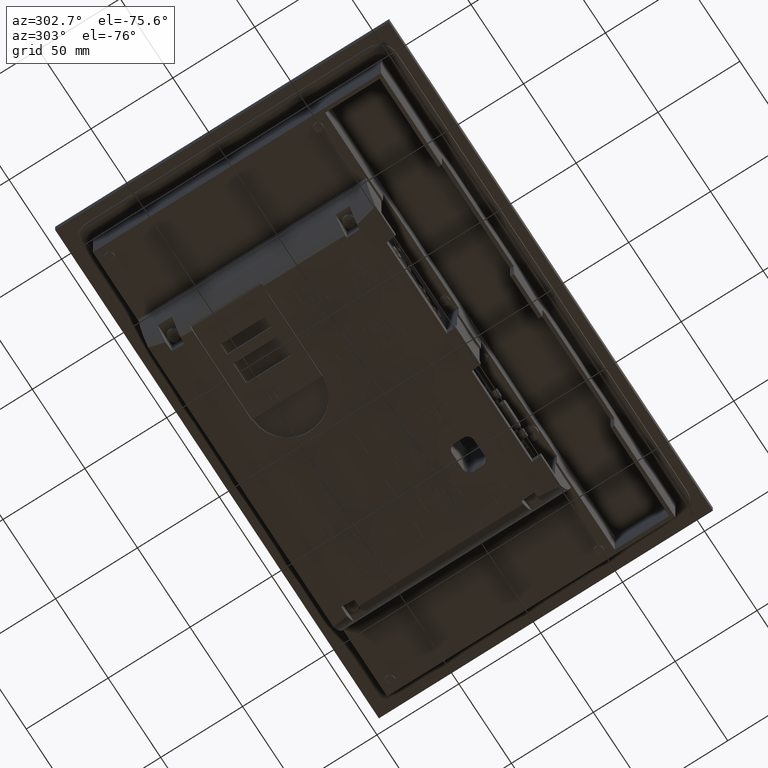
[diagram: clean part render]
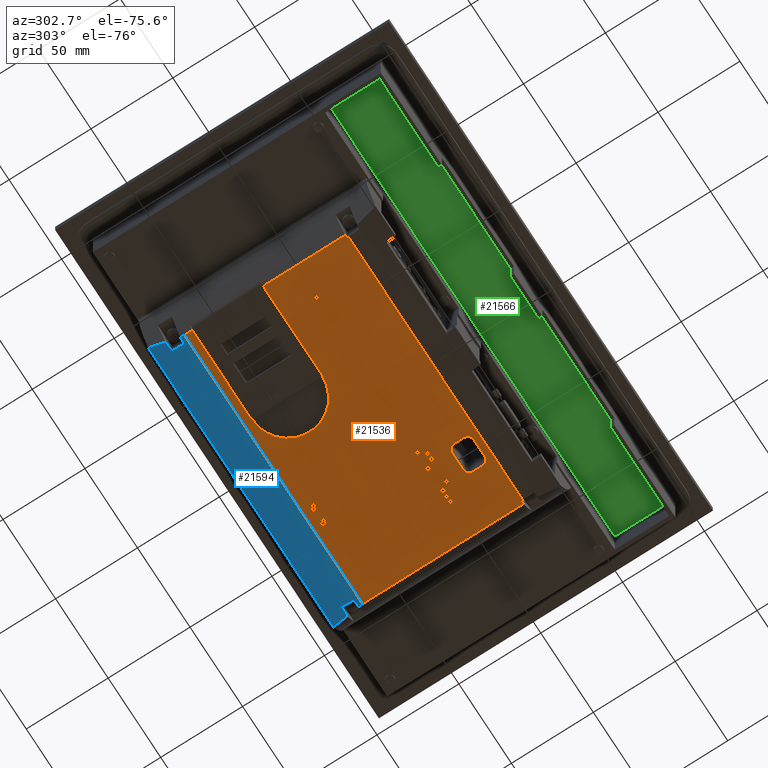
[diagram: same view with three faces highlighted in distinct colors, each labeled with its STEP entity id]
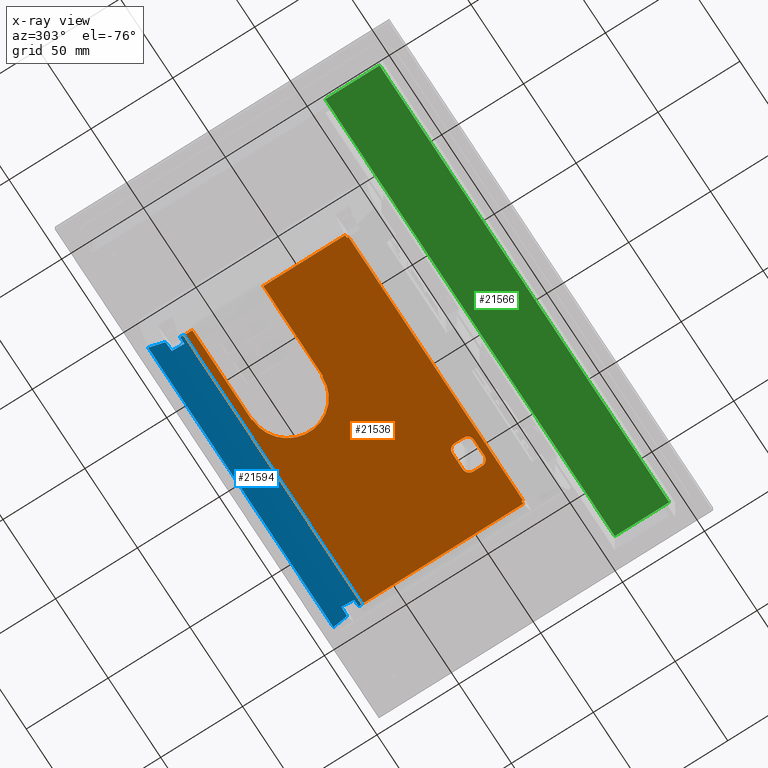
[diagram: x-ray of the same camera — body ghosted, the three highlighted faces saturated]
A machine part, auxiliary view with three faces highlighted in distinct colors.
The next image is the same camera in x-ray (body ghosted, the three faces saturated) — at least one of them is partly hidden behind the body in this view.
Their STEP definitions:

[orange] entity #21536 — the highlighted planar face has unit normal (0, 0, 1).
#4714=LINE('',#83607,#11484);
#4720=LINE('',#83619,#11490);
#4810=LINE('',#83876,#11580);
#4811=LINE('',#83880,#11581);
#4812=LINE('',#83884,#11582);
#4813=LINE('',#83888,#11583);
#4814=LINE('',#83889,#11584);
#4815=LINE('',#83892,#11585);
#4816=LINE('',#83894,#11586);
#4817=LINE('',#83896,#11587);
#4818=LINE('',#83898,#11588);
#4819=LINE('',#83900,#11589);
#4820=LINE('',#83902,#11590);
#4821=LINE('',#83904,#11591);
#4822=LINE('',#83905,#11592);
#4823=LINE('',#83909,#11593);
#4824=LINE('',#83910,#11594);
#4825=LINE('',#83912,#11595);
#4826=LINE('',#83914,#11596);
#4827=LINE('',#83916,#11597);
#4828=LINE('',#83918,#11598);
#11484=VECTOR('',#67787,1.);
#11490=VECTOR('',#67795,1.);
#11580=VECTOR('',#67973,1.);
#11581=VECTOR('',#67976,1.);
#11582=VECTOR('',#67979,1.);
#11583=VECTOR('',#67982,1.);
#11584=VECTOR('',#67983,1.);
#11585=VECTOR('',#67984,1.);
#11586=VECTOR('',#67985,1.);
#11587=VECTOR('',#67986,1.);
#11588=VECTOR('',#67987,1.);
#11589=VECTOR('',#67988,1.);
#11590=VECTOR('',#67989,1.);
#11591=VECTOR('',#67990,1.);
#11592=VECTOR('',#67991,1.);
#11593=VECTOR('',#67994,1.);
#11594=VECTOR('',#67995,1.);
#11595=VECTOR('',#67996,1.);
#11596=VECTOR('',#67997,1.);
#11597=VECTOR('',#67998,1.);
#11598=VECTOR('',#67999,1.);
#21536=ADVANCED_FACE('',(#28703,#28704),#24894,.F.);
#24894=PLANE('',#63173);
#28703=FACE_BOUND('',#29624,.T.);
#28704=FACE_BOUND('',#29625,.T.);
#29624=EDGE_LOOP('',(#34867,#34868,#34869,#34870,#34871,#34872,#34873,#34874));
#29625=EDGE_LOOP('',(#34875,#34876,#34877,#34878,#34879,#34880,#34881,#34882,
#34883,#34884,#34885,#34886,#34887,#34888,#34889,#34890,#34891,#34892));
#34867=ORIENTED_EDGE('',*,*,#55380,.F.);
#34868=ORIENTED_EDGE('',*,*,#55381,.F.);
#34869=ORIENTED_EDGE('',*,*,#55382,.F.);
#34870=ORIENTED_EDGE('',*,*,#55383,.F.);
#34871=ORIENTED_EDGE('',*,*,#55384,.F.);
#34872=ORIENTED_EDGE('',*,*,#55385,.F.);
#34873=ORIENTED_EDGE('',*,*,#55386,.F.);
#34874=ORIENTED_EDGE('',*,*,#55387,.F.);
#34875=ORIENTED_EDGE('',*,*,#55388,.F.);
#34876=ORIENTED_EDGE('',*,*,#55389,.F.);
#34877=ORIENTED_EDGE('',*,*,#55390,.T.);
#34878=ORIENTED_EDGE('',*,*,#55391,.T.);
#34879=ORIENTED_EDGE('',*,*,#55392,.T.);
#34880=ORIENTED_EDGE('',*,*,#55393,.F.);
#34881=ORIENTED_EDGE('',*,*,#55394,.F.);
#34882=ORIENTED_EDGE('',*,*,#55395,.F.);
#34883=ORIENTED_EDGE('',*,*,#55248,.F.);
#34884=ORIENTED_EDGE('',*,*,#55396,.F.);
#34885=ORIENTED_EDGE('',*,*,#55397,.F.);
#34886=ORIENTED_EDGE('',*,*,#55398,.F.);
#34887=ORIENTED_EDGE('',*,*,#55254,.T.);
#34888=ORIENTED_EDGE('',*,*,#55399,.T.);
#34889=ORIENTED_EDGE('',*,*,#55400,.T.);
#34890=ORIENTED_EDGE('',*,*,#55401,.F.);
#34891=ORIENTED_EDGE('',*,*,#55402,.F.);
#34892=ORIENTED_EDGE('',*,*,#55403,.T.);
#49565=VERTEX_POINT('',#83608);
#49566=VERTEX_POINT('',#83609);
#49569=VERTEX_POINT('',#83618);
#49570=VERTEX_POINT('',#83620);
#49691=VERTEX_POINT('',#83874);
#49692=VERTEX_POINT('',#83875);
#49693=VERTEX_POINT('',#83877);
#49694=VERTEX_POINT('',#83879);
#49695=VERTEX_POINT('',#83881);
#49696=VERTEX_POINT('',#83883);
#49697=VERTEX_POINT('',#83885);
#49698=VERTEX_POINT('',#83887);
#49699=VERTEX_POINT('',#83890);
#49700=VERTEX_POINT('',#83891);
#49701=VERTEX_POINT('',#83893);
#49702=VERTEX_POINT('',#83895);
#49703=VERTEX_POINT('',#83897);
#49704=VERTEX_POINT('',#83899);
#49705=VERTEX_POINT('',#83901);
#49706=VERTEX_POINT('',#83903);
#49707=VERTEX_POINT('',#83906);
#49708=VERTEX_POINT('',#83908);
#49709=VERTEX_POINT('',#83911);
#49710=VERTEX_POINT('',#83913);
#49711=VERTEX_POINT('',#83915);
#49712=VERTEX_POINT('',#83917);
#55248=EDGE_CURVE('',#49565,#49566,#4714,.T.);
#55254=EDGE_CURVE('',#49570,#49569,#4720,.T.);
#55380=EDGE_CURVE('',#49691,#49692,#62445,.T.);
#55381=EDGE_CURVE('',#49693,#49691,#4810,.T.);
#55382=EDGE_CURVE('',#49694,#49693,#62446,.T.);
#55383=EDGE_CURVE('',#49695,#49694,#4811,.T.);
#55384=EDGE_CURVE('',#49696,#49695,#62447,.T.);
#55385=EDGE_CURVE('',#49697,#49696,#4812,.T.);
#55386=EDGE_CURVE('',#49698,#49697,#62448,.T.);
#55387=EDGE_CURVE('',#49692,#49698,#4813,.T.);
#55388=EDGE_CURVE('',#49699,#49700,#4814,.T.);
#55389=EDGE_CURVE('',#49701,#49699,#4815,.T.);
#55390=EDGE_CURVE('',#49701,#49702,#4816,.T.);
#55391=EDGE_CURVE('',#49702,#49703,#4817,.T.);
#55392=EDGE_CURVE('',#49703,#49704,#4818,.T.);
#55393=EDGE_CURVE('',#49705,#49704,#4819,.T.);
#55394=EDGE_CURVE('',#49706,#49705,#4820,.T.);
#55395=EDGE_CURVE('',#49566,#49706,#4821,.T.);
#55396=EDGE_CURVE('',#49707,#49565,#4822,.T.);
#55397=EDGE_CURVE('',#49708,#49707,#62449,.T.);
#55398=EDGE_CURVE('',#49570,#49708,#4823,.T.);
#55399=EDGE_CURVE('',#49569,#49709,#4824,.T.);
#55400=EDGE_CURVE('',#49709,#49710,#4825,.T.);
#55401=EDGE_CURVE('',#49711,#49710,#4826,.T.);
#55402=EDGE_CURVE('',#49712,#49711,#4827,.T.);
#55403=EDGE_CURVE('',#49712,#49700,#4828,.T.);
#62445=CIRCLE('',#63168,3.889035815114);
#62446=CIRCLE('',#63169,3.889035815114);
#62447=CIRCLE('',#63170,3.889035815114);
#62448=CIRCLE('',#63171,3.889035815114);
#62449=CIRCLE('',#63172,21.28067767034);
#63168=AXIS2_PLACEMENT_3D('',#83873,#67971,#67972);
#63169=AXIS2_PLACEMENT_3D('',#83878,#67974,#67975);
#63170=AXIS2_PLACEMENT_3D('',#83882,#67977,#67978);
#63171=AXIS2_PLACEMENT_3D('',#83886,#67980,#67981);
#63172=AXIS2_PLACEMENT_3D('',#83907,#67992,#67993);
#63173=AXIS2_PLACEMENT_3D('',#83919,#68000,#68001);
#67787=DIRECTION('',(-1.,0.,0.));
#67795=DIRECTION('',(-1.,0.,0.));
#67971=DIRECTION('',(0.,0.,-1.));
#67972=DIRECTION('',(0.,1.,0.));
#67973=DIRECTION('',(0.,1.,0.));
#67974=DIRECTION('',(0.,0.,-1.));
#67975=DIRECTION('',(-1.,0.,0.));
#67976=DIRECTION('',(-1.,0.,0.));
#67977=DIRECTION('',(0.,0.,-1.));
#67978=DIRECTION('',(0.,-1.,0.));
#67979=DIRECTION('',(0.,-1.,0.));
#67980=DIRECTION('',(0.,0.,-1.));
#67981=DIRECTION('',(1.,0.,0.));
#67982=DIRECTION('',(1.,0.,0.));
#67983=DIRECTION('',(0.999048221579297,0.0436193874240001,0.));
#67984=DIRECTION('',(0.,1.,0.));
#67985=DIRECTION('',(-1.,0.,0.));
#67986=DIRECTION('',(0.,1.,0.));
#67987=DIRECTION('',(-0.999048221579297,0.04361938742399,0.));
#67988=DIRECTION('',(0.,-1.,0.));
#67989=DIRECTION('',(-1.,0.,0.));
#67990=DIRECTION('',(-1.,0.,0.));
#67991=DIRECTION('',(0.,-1.,0.));
#67992=DIRECTION('',(0.,0.,-1.));
#67993=DIRECTION('',(0.02395556435399,-0.999713024290712,0.));
#67994=DIRECTION('',(0.,-1.,0.));
#67995=DIRECTION('',(-1.,0.,0.));
#67996=DIRECTION('',(-1.,0.,0.));
#67997=DIRECTION('',(0.,-1.,0.));
#67998=DIRECTION('',(-1.,0.,0.));
#67999=DIRECTION('',(0.,-1.,0.));
#68000=DIRECTION('',(0.,0.,1.));
#68001=DIRECTION('',(1.,0.,0.));
#83607=CARTESIAN_POINT('',(-28.,19.3799282042276,-69.));
#83608=CARTESIAN_POINT('',(-28.,19.3799282042276,-69.));
#83609=CARTESIAN_POINT('',(-76.9513412999448,19.3799282042276,-69.));
#83618=CARTESIAN_POINT('',(-76.9513412999572,62.7200717957711,-69.000000000042));
#83619=CARTESIAN_POINT('',(-28.,62.7200717957709,-69.));
#83620=CARTESIAN_POINT('',(-28.,62.7200717957709,-69.));
#83873=CARTESIAN_POINT('',(42.5,-18.3,-69.));
#83874=CARTESIAN_POINT('',(38.61096418487,-18.3,-69.));
#83875=CARTESIAN_POINT('',(42.5,-14.410964184886,-69.));
#83876=CARTESIAN_POINT('',(38.61096418487,-23.8,-69.));
#83877=CARTESIAN_POINT('',(38.61096418487,-23.8,-69.));
#83878=CARTESIAN_POINT('',(42.5,-23.8,-69.));
#83879=CARTESIAN_POINT('',(42.5,-27.689035815114,-69.));
#83880=CARTESIAN_POINT('',(52.5,-27.68903581513,-69.));
#83881=CARTESIAN_POINT('',(52.5,-27.689035815114,-69.));
#83882=CARTESIAN_POINT('',(52.5,-23.8,-69.));
#83883=CARTESIAN_POINT('',(56.38903581513,-23.8,-69.));
#83884=CARTESIAN_POINT('',(56.38903581513,-18.3,-69.));
#83885=CARTESIAN_POINT('',(56.389035815114,-18.3,-69.));
#83886=CARTESIAN_POINT('',(52.5,-18.3,-69.));
#83887=CARTESIAN_POINT('',(52.5,-14.41096418487,-69.));
#83888=CARTESIAN_POINT('',(42.5,-14.41096418487,-69.));
#83889=CARTESIAN_POINT('',(82.98724977297,-30.7086273439642,-69.));
#83890=CARTESIAN_POINT('',(82.98724977297,-30.7086273439642,-69.));
#83891=CARTESIAN_POINT('',(84.6864665396618,-30.6344379376246,-69.));
#83892=CARTESIAN_POINT('',(82.98724977297,-38.3913726560415,-69.));
#83893=CARTESIAN_POINT('',(82.98724977297,-31.5499999999875,-69.));
#83894=CARTESIAN_POINT('',(100.,-31.5499999999875,-69.));
#83895=CARTESIAN_POINT('',(-82.9872497727152,-31.5499999999875,-69.));
#83896=CARTESIAN_POINT('',(-82.98724977297,-38.3913726560336,-69.));
#83897=CARTESIAN_POINT('',(-82.98724977297,-30.7086273439607,-69.));
#83898=CARTESIAN_POINT('',(-82.98724977297,-30.7086273439607,-69.));
#83899=CARTESIAN_POINT('',(-84.6864665885116,-30.6344379354882,-68.9999999990172));
#83900=CARTESIAN_POINT('',(-84.6864665869474,98.55919756065,-69.));
#83901=CARTESIAN_POINT('',(-84.6864665869474,19.3799282042276,-69.));
#83902=CARTESIAN_POINT('',(-28.,19.3799282042276,-69.));
#83903=CARTESIAN_POINT('',(-82.1989808977639,19.379928204231,-68.9999999992145));
#83904=CARTESIAN_POINT('',(-28.,19.3799282042276,-69.));
#83905=CARTESIAN_POINT('',(-28.,62.7200717957709,-69.));
#83906=CARTESIAN_POINT('',(-28.,19.76932232966,-69.));
#83907=CARTESIAN_POINT('',(-28.,41.05,-69.));
#83908=CARTESIAN_POINT('',(-28.,62.33067767034,-69.));
#83909=CARTESIAN_POINT('',(-28.,62.7200717957709,-69.));
#83910=CARTESIAN_POINT('',(-28.,62.7200717957709,-69.));
#83911=CARTESIAN_POINT('',(-82.198980897131,62.7200717957683,-68.9999999994016));
#83912=CARTESIAN_POINT('',(-28.,62.7200717957709,-69.));
#83913=CARTESIAN_POINT('',(-84.6864665869474,62.7200717957709,-69.));
#83914=CARTESIAN_POINT('',(-84.6864665869474,98.55919756065,-69.));
#83915=CARTESIAN_POINT('',(-84.6864665869474,67.4500000018811,-69.));
#83916=CARTESIAN_POINT('',(100.,67.4500000018811,-69.));
#83917=CARTESIAN_POINT('',(84.6864665396618,67.4500000018811,-69.));
#83918=CARTESIAN_POINT('',(84.6864665396618,98.55919756065,-69.));
#83919=CARTESIAN_POINT('',(-97.36932723405,-51.44080243935,-69.));

[blue] entity #21594 — the highlighted cylindrical surface (partial cylindrical patch) has radius 150 mm, axis along (-1, 0, 0).
#98=ELLIPSE('',#63255,3438.837875802,150.000001528685);
#99=ELLIPSE('',#63256,3438.837875802,150.000001528685);
#100=ELLIPSE('',#63257,3438.83787511814,150.000001528685);
#101=ELLIPSE('',#63258,3438.83787511814,150.000001528685);
#4827=LINE('',#83916,#11597);
#4879=LINE('',#84093,#11649);
#11597=VECTOR('',#67998,1.);
#11649=VECTOR('',#68132,1.);
#18227=FACE_OUTER_BOUND('',#29683,.T.);
#21005=CYLINDRICAL_SURFACE('',#63259,150.000001528685);
#21594=ADVANCED_FACE('',(#18227),#21005,.T.);
#27571=B_SPLINE_CURVE_WITH_KNOTS('',3,(#83943,#83944,#83945,#83946),.UNSPECIFIED.,
 .F.,.F.,(4,4),(0.,1.),.UNSPECIFIED.);
#27572=B_SPLINE_CURVE_WITH_KNOTS('',3,(#83954,#83955,#83956,#83957),.UNSPECIFIED.,
 .F.,.F.,(4,4),(0.,1.),.UNSPECIFIED.);
#27574=B_SPLINE_CURVE_WITH_KNOTS('',3,(#84040,#84041,#84042,#84043),.UNSPECIFIED.,
 .F.,.F.,(4,4),(0.,1.),.UNSPECIFIED.);
#27575=B_SPLINE_CURVE_WITH_KNOTS('',3,(#84051,#84052,#84053,#84054),.UNSPECIFIED.,
 .F.,.F.,(4,4),(0.,1.),.UNSPECIFIED.);
#27576=B_SPLINE_CURVE_WITH_KNOTS('',3,(#84257,#84258,#84259,#84260,#84261,
#84262,#84263,#84264,#84265,#84266),.UNSPECIFIED.,.F.,.F.,(4,3,3,4),(0.,
0.249890063071819,0.62487302798014,1.),.UNSPECIFIED.);
#27577=B_SPLINE_CURVE_WITH_KNOTS('',3,(#84272,#84273,#84274,#84275,#84276,
#84277,#84278,#84279,#84280,#84281),.UNSPECIFIED.,.F.,.F.,(4,3,3,4),(0.,
0.499840046020577,0.749898678420995,1.),.UNSPECIFIED.);
#29683=EDGE_LOOP('',(#35227,#35228,#35229,#35230,#35231,#35232,#35233,#35234,
#35235,#35236,#35237,#35238));
#35227=ORIENTED_EDGE('',*,*,#55566,.T.);
#35228=ORIENTED_EDGE('',*,*,#55567,.T.);
#35229=ORIENTED_EDGE('',*,*,#55414,.F.);
#35230=ORIENTED_EDGE('',*,*,#55484,.F.);
#35231=ORIENTED_EDGE('',*,*,#55463,.T.);
#35232=ORIENTED_EDGE('',*,*,#55568,.T.);
#35233=ORIENTED_EDGE('',*,*,#55569,.T.);
#35234=ORIENTED_EDGE('',*,*,#55570,.T.);
#35235=ORIENTED_EDGE('',*,*,#55459,.T.);
#35236=ORIENTED_EDGE('',*,*,#55402,.T.);
#35237=ORIENTED_EDGE('',*,*,#55418,.F.);
#35238=ORIENTED_EDGE('',*,*,#55571,.T.);
#49711=VERTEX_POINT('',#83915);
#49712=VERTEX_POINT('',#83917);
#49722=VERTEX_POINT('',#83942);
#49723=VERTEX_POINT('',#83947);
#49726=VERTEX_POINT('',#83953);
#49760=VERTEX_POINT('',#84044);
#49763=VERTEX_POINT('',#84050);
#49764=VERTEX_POINT('',#84055);
#49813=VERTEX_POINT('',#84267);
#49814=VERTEX_POINT('',#84268);
#49815=VERTEX_POINT('',#84271);
#49816=VERTEX_POINT('',#84282);
#55402=EDGE_CURVE('',#49712,#49711,#4827,.T.);
#55414=EDGE_CURVE('',#49722,#49723,#27571,.T.);
#55418=EDGE_CURVE('',#49726,#49711,#27572,.T.);
#55459=EDGE_CURVE('',#49760,#49712,#27574,.T.);
#55463=EDGE_CURVE('',#49764,#49763,#27575,.T.);
#55484=EDGE_CURVE('',#49764,#49722,#4879,.T.);
#55566=EDGE_CURVE('',#49813,#49814,#27576,.T.);
#55567=EDGE_CURVE('',#49814,#49723,#98,.T.);
#55568=EDGE_CURVE('',#49763,#49815,#99,.T.);
#55569=EDGE_CURVE('',#49815,#49816,#27577,.T.);
#55570=EDGE_CURVE('',#49816,#49760,#100,.T.);
#55571=EDGE_CURVE('',#49726,#49813,#101,.T.);
#63255=AXIS2_PLACEMENT_3D('',#84269,#68296,#68297);
#63256=AXIS2_PLACEMENT_3D('',#84270,#68298,#68299);
#63257=AXIS2_PLACEMENT_3D('',#84283,#68300,#68301);
#63258=AXIS2_PLACEMENT_3D('',#84284,#68302,#68303);
#63259=AXIS2_PLACEMENT_3D('',#84285,#68304,#68305);
#67998=DIRECTION('',(-1.,0.,0.));
#68132=DIRECTION('',(-1.,0.,0.));
#68296=DIRECTION('',(0.0436193874053171,0.999048221580112,0.));
#68297=DIRECTION('',(-0.999048221580112,0.0436193874053171,0.));
#68298=DIRECTION('',(-0.0436193874053171,0.999048221580112,0.));
#68299=DIRECTION('',(-0.999048221580112,-0.0436193874053171,0.));
#68300=DIRECTION('',(-0.0436193874139914,-0.999048221579734,0.));
#68301=DIRECTION('',(-0.999048221579734,0.0436193874139914,0.));
#68302=DIRECTION('',(0.0436193874139914,-0.999048221579734,0.));
#68303=DIRECTION('',(-0.999048221579734,-0.0436193874139914,0.));
#68304=DIRECTION('',(-1.,0.,0.));
#68305=DIRECTION('',(0.,0.,1.));
#83915=CARTESIAN_POINT('',(-84.6864665869474,67.4500000018811,-69.));
#83916=CARTESIAN_POINT('',(100.,67.4500000018811,-69.));
#83917=CARTESIAN_POINT('',(84.6864665396618,67.4500000018811,-69.));
#83942=CARTESIAN_POINT('',(-88.1547549009371,87.4907008752,-64.1683139092645));
#83943=CARTESIAN_POINT('',(-88.1547549009371,87.4907008752,-64.1683139092645));
#83944=CARTESIAN_POINT('',(-87.5192678028828,84.3660105291875,-65.153239175044));
#83945=CARTESIAN_POINT('',(-86.9095436151853,81.21200361681,-66.0350593700733));
#83946=CARTESIAN_POINT('',(-86.3456570339561,78.0253257697581,-66.8142714103306));
#83947=CARTESIAN_POINT('',(-86.3456570339498,78.0253257697591,-66.8142714103304));
#83953=CARTESIAN_POINT('',(-85.034775071951,69.9319085727796,-68.5580757107545));
#83954=CARTESIAN_POINT('',(-85.0347750719652,69.9319085727772,-68.5580757107549));
#83955=CARTESIAN_POINT('',(-84.9145224481243,69.1069501985611,-68.7121293592661));
#83956=CARTESIAN_POINT('',(-84.7983130548108,68.2796695048855,-68.8594528891767));
#83957=CARTESIAN_POINT('',(-84.6864665869474,67.4500000018811,-69.));
#84040=CARTESIAN_POINT('',(85.0347750341733,69.9319085744291,-68.5580757104464));
#84041=CARTESIAN_POINT('',(84.9145224071489,69.106950199681,-68.7121293590665));
#84042=CARTESIAN_POINT('',(84.7983130106612,68.2796695054568,-68.8594528890799));
#84043=CARTESIAN_POINT('',(84.6864665396618,67.4500000018811,-69.));
#84044=CARTESIAN_POINT('',(85.0347750341733,69.9319085744291,-68.5580757104465));
#84050=CARTESIAN_POINT('',(86.3456570257345,78.0253257694004,-66.8142714104181));
#84051=CARTESIAN_POINT('',(88.1547549206866,87.4907008752,-64.1683139092645));
#84052=CARTESIAN_POINT('',(87.5192678155981,84.3660105288029,-65.1532391751653));
#84053=CARTESIAN_POINT('',(86.9095436180974,81.2120036164012,-66.0350593701816));
#84054=CARTESIAN_POINT('',(86.3456570257347,78.0253257694004,-66.8142714104181));
#84055=CARTESIAN_POINT('',(88.1547549206866,87.4907008751997,-64.1683139092646));
#84093=CARTESIAN_POINT('',(100.,87.4907008751997,-64.1683139092646));
#84257=CARTESIAN_POINT('',(-80.7205072744167,70.1202735729902,-68.5227756789515));
#84258=CARTESIAN_POINT('',(-80.7184330965021,70.7616483874044,-68.4021564129414));
#84259=CARTESIAN_POINT('',(-80.7164404307572,71.4022499025007,-68.2773486216848));
#84260=CARTESIAN_POINT('',(-80.7145294340391,72.0419962376971,-68.1483682479611));
#84261=CARTESIAN_POINT('',(-80.7116618846138,73.001968705706,-67.9548265254436));
#84262=CARTESIAN_POINT('',(-80.7089779864869,73.9600922323771,-67.7518736134596));
#84263=CARTESIAN_POINT('',(-80.7064783405444,74.916091077593,-67.5395678899245));
#84264=CARTESIAN_POINT('',(-80.7039777347394,75.87245702579,-67.3271806411194));
#84265=CARTESIAN_POINT('',(-80.7016612859508,76.8267884559073,-67.1054130100067));
#84266=CARTESIAN_POINT('',(-80.699529251662,77.7788105067761,-66.87432884256));
#84267=CARTESIAN_POINT('',(-80.7205072744167,70.1202735729902,-68.5227756789515));
#84268=CARTESIAN_POINT('',(-80.699529251662,77.7788105067761,-66.87432884256));
#84269=CARTESIAN_POINT('',(729.683272966776,42.3967332125842,78.892982530578));
#84270=CARTESIAN_POINT('',(-729.683272966776,42.3967332125842,78.892982530578));
#84271=CARTESIAN_POINT('',(80.699529251662,77.7788105067761,-66.87432884256));
#84272=CARTESIAN_POINT('',(80.699529251662,77.7788105067761,-66.87432884256));
#84273=CARTESIAN_POINT('',(80.7023700096454,76.5103204756403,-67.1822292346696));
#84274=CARTESIAN_POINT('',(80.7055382786246,75.2377032629351,-67.473594973382));
#84275=CARTESIAN_POINT('',(80.709033309079,73.9616095487143,-67.7482771492623));
#84276=CARTESIAN_POINT('',(80.7107819052337,73.3231680269978,-67.885703189688));
#84277=CARTESIAN_POINT('',(80.7126123802821,72.6838155812774,-68.0189625014444));
#84278=CARTESIAN_POINT('',(80.7145245418935,72.0436340441576,-68.1480380374539));
#84279=CARTESIAN_POINT('',(80.7164370299291,71.4033432220048,-68.2771356078761));
#84280=CARTESIAN_POINT('',(80.7184313265124,70.7621957015187,-68.4020534830707));
#84281=CARTESIAN_POINT('',(80.7205072744167,70.1202735729902,-68.5227756789515));
#84282=CARTESIAN_POINT('',(80.7205072744167,70.1202735729902,-68.5227756789515));
#84283=CARTESIAN_POINT('',(715.693975151994,42.3967332125842,78.892982530578));
#84284=CARTESIAN_POINT('',(-715.693975151994,42.3967332125842,78.892982530578));
#84285=CARTESIAN_POINT('',(100.,42.3967332125842,78.892982530578));

[green] entity #21566 — the highlighted planar face has unit normal (0, 0, -1).
#4907=LINE('',#84144,#11677);
#4927=LINE('',#84182,#11697);
#4939=LINE('',#84205,#11709);
#4940=LINE('',#84207,#11710);
#11677=VECTOR('',#68166,1.);
#11697=VECTOR('',#68192,1.);
#11709=VECTOR('',#68214,1.);
#11710=VECTOR('',#68217,1.);
#18199=FACE_OUTER_BOUND('',#29655,.T.);
#21566=ADVANCED_FACE('',(#18199),#24921,.T.);
#24921=PLANE('',#63227);
#29655=EDGE_LOOP('',(#35113,#35114,#35115,#35116));
#35113=ORIENTED_EDGE('',*,*,#55544,.T.);
#35114=ORIENTED_EDGE('',*,*,#55512,.T.);
#35115=ORIENTED_EDGE('',*,*,#55545,.T.);
#35116=ORIENTED_EDGE('',*,*,#55532,.T.);
#49791=VERTEX_POINT('',#84143);
#49792=VERTEX_POINT('',#84145);
#49806=VERTEX_POINT('',#84181);
#49807=VERTEX_POINT('',#84183);
#55512=EDGE_CURVE('',#49792,#49791,#4907,.T.);
#55532=EDGE_CURVE('',#49807,#49806,#4927,.T.);
#55544=EDGE_CURVE('',#49806,#49792,#4939,.T.);
#55545=EDGE_CURVE('',#49791,#49807,#4940,.T.);
#63227=AXIS2_PLACEMENT_3D('',#84209,#68220,#68221);
#68166=DIRECTION('',(1.,-3.5388925769991E-014,0.));
#68192=DIRECTION('',(-1.,-7.77406289843342E-011,0.));
#68214=DIRECTION('',(-1.41962655608928E-012,1.,0.));
#68217=DIRECTION('',(-2.27234612533028E-010,-1.,0.));
#68220=DIRECTION('',(0.,0.,-1.));
#68221=DIRECTION('',(-1.,0.,0.));
#84143=CARTESIAN_POINT('',(137.739066562712,-52.5018195392114,-8.));
#84144=CARTESIAN_POINT('',(-137.746716711804,-52.5018195392016,-8.));
#84145=CARTESIAN_POINT('',(-137.746716711804,-52.5018195392016,-8.));
#84181=CARTESIAN_POINT('',(-137.746716711756,-85.7390665772894,-8.));
#84182=CARTESIAN_POINT('',(137.739066555159,-85.739066555873,-8.));
#84183=CARTESIAN_POINT('',(137.739066555159,-85.739066555873,-8.));
#84205=CARTESIAN_POINT('',(-137.746716711756,-85.7390665772894,-8.));
#84207=CARTESIAN_POINT('',(137.739066562712,-52.5018195392114,-8.));
#84209=CARTESIAN_POINT('',(-137.746716711804,-52.5018195392016,-8.));